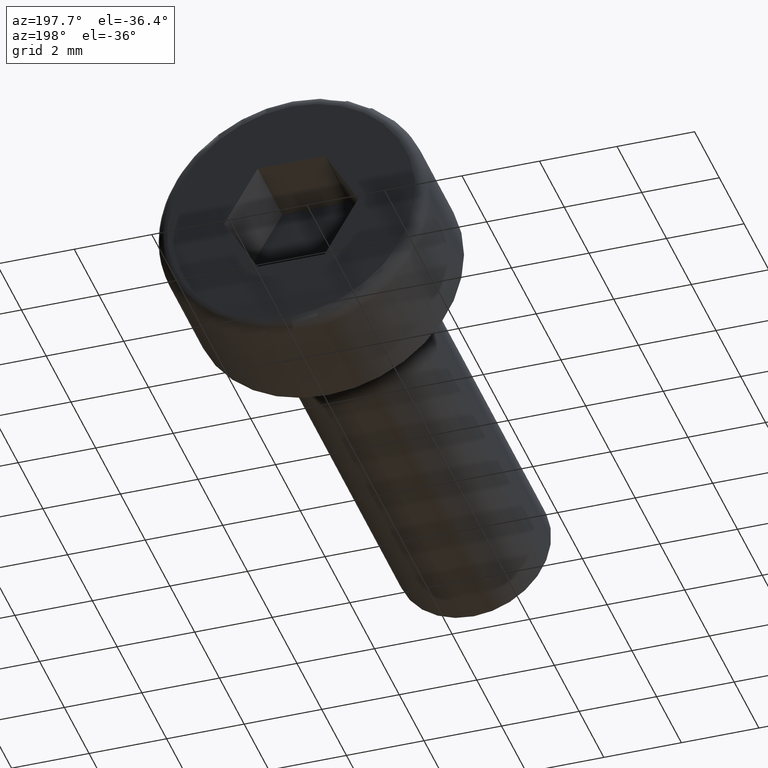
[diagram: clean part render]
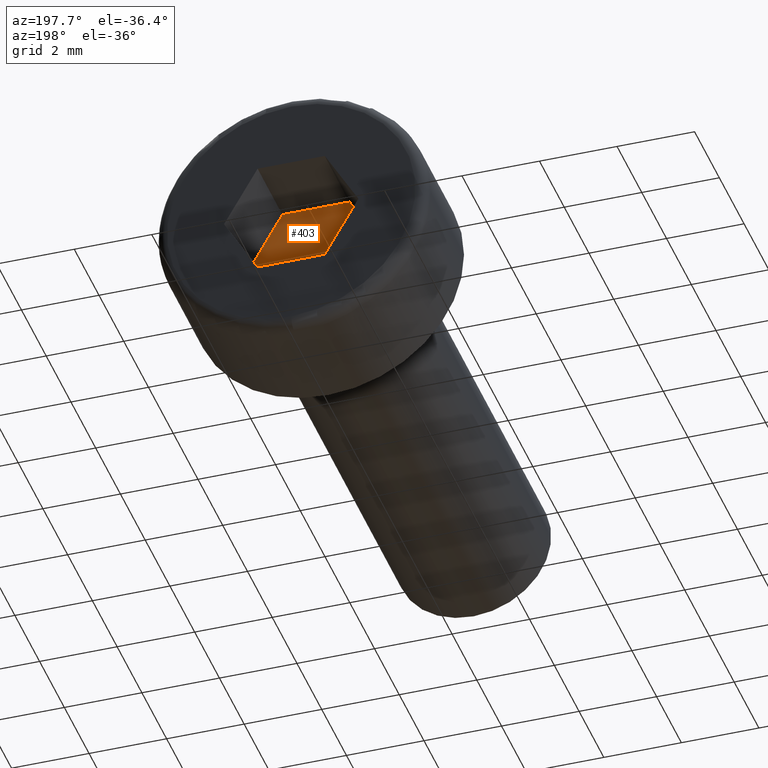
[diagram: same view with one face highlighted and labeled with its STEP entity id]
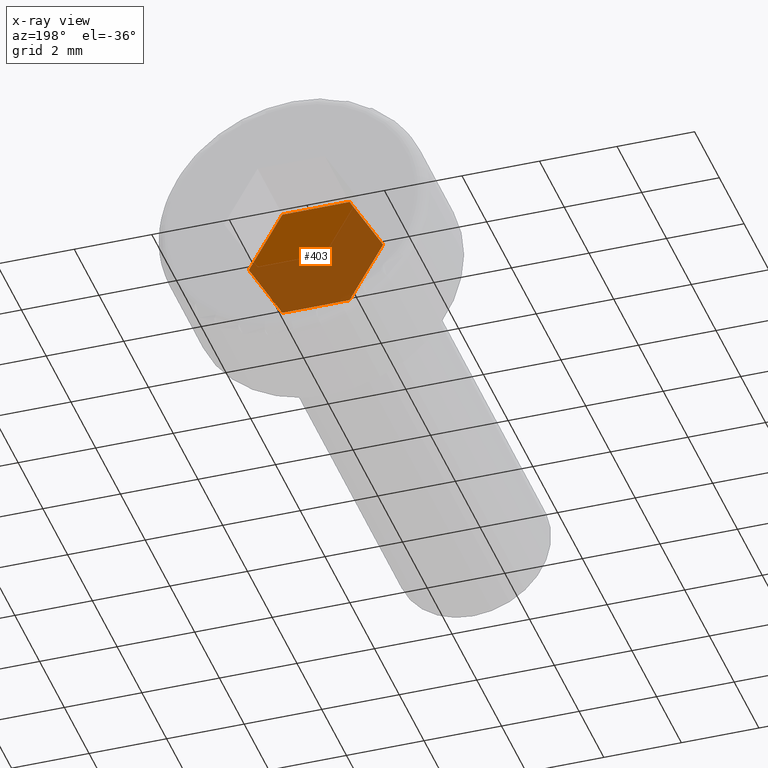
[diagram: x-ray of the same camera — body ghosted, the highlighted face saturated]
A machine part, auxiliary view. The second image highlights one B-rep face of the part: STEP entity #403.
The next image is the same camera in x-ray: the body ghosted, the highlighted face saturated — about 64% of this face is hidden behind the body in this view.
In plain terms, the highlighted planar face has unit normal (0, 1, -0).
Its self-contained STEP definition (entity closure, byte-faithful):
#23 = DIRECTION ( 'NONE',  ( -1.000000000000000000, 0.0000000000000000000, 2.503857664561930400E-016 ) ) ;
#56 = CARTESIAN_POINT ( 'NONE',  ( 0.8660254037844383700, 1.000000000000000000, -1.499999999999999100 ) ) ;
#83 = PLANE ( 'NONE',  #459 ) ;
#93 = CARTESIAN_POINT ( 'NONE',  ( -1.732050807568877900, 1.000000000000000000, -1.397130228418429200E-015 ) ) ;
#96 = CARTESIAN_POINT ( 'NONE',  ( 0.8660254037844382600, 1.000000000000000000, 1.500000000000000700 ) ) ;
#98 = DIRECTION ( 'NONE',  ( 0.0000000000000000000, 1.000000000000000000, -0.0000000000000000000 ) ) ;
#103 = CARTESIAN_POINT ( 'NONE',  ( 1.732050807568877200, 1.000000000000000000, 6.989779385099198900E-016 ) ) ;
#107 = DIRECTION ( 'NONE',  ( 0.5000000000000001100, 0.0000000000000000000, 0.8660254037844384900 ) ) ;
#110 = CARTESIAN_POINT ( 'NONE',  ( -1.732050807568877900, 1.000000000000000000, -1.397130228418429200E-015 ) ) ;
#115 = DIRECTION ( 'NONE',  ( 0.0000000000000000000, 0.0000000000000000000, 1.000000000000000000 ) ) ;
#116 = DIRECTION ( 'NONE',  ( 1.000000000000000000, 0.0000000000000000000, 0.0000000000000000000 ) ) ;
#119 = CARTESIAN_POINT ( 'NONE',  ( -0.8660254037844377100, 1.000000000000000000, 1.500000000000000700 ) ) ;
#122 = DIRECTION ( 'NONE',  ( 0.5000000000000001100, 0.0000000000000000000, -0.8660254037844386000 ) ) ;
#123 = CARTESIAN_POINT ( 'NONE',  ( 0.8660254037844382600, 1.000000000000000000, 1.500000000000000700 ) ) ;
#126 = DIRECTION ( 'NONE',  ( -0.5000000000000001100, 0.0000000000000000000, -0.8660254037844386000 ) ) ;
#127 = CARTESIAN_POINT ( 'NONE',  ( 1.732050807568877200, 1.000000000000000000, 6.989779385099198900E-016 ) ) ;
#132 = CARTESIAN_POINT ( 'NONE',  ( -1.732050807568877900, 1.000000000000000000, -1.325064512341561300E-015 ) ) ;
#152 = CARTESIAN_POINT ( 'NONE',  ( 0.8660254037844383700, 1.000000000000000000, -1.499999999999999100 ) ) ;
#153 = CARTESIAN_POINT ( 'NONE',  ( -0.8660254037844377100, 1.000000000000000000, 1.500000000000000700 ) ) ;
#180 = DIRECTION ( 'NONE',  ( -0.5000000000000001100, 0.0000000000000000000, 0.8660254037844386000 ) ) ;
#191 = CARTESIAN_POINT ( 'NONE',  ( -0.8660254037844404800, 1.000000000000000000, -1.499999999999998700 ) ) ;
#195 = CARTESIAN_POINT ( 'NONE',  ( -0.8660254037844404800, 1.000000000000000000, -1.499999999999998700 ) ) ;
#210 = FACE_OUTER_BOUND ( 'NONE', #536, .T. ) ;
#218 = VERTEX_POINT ( 'NONE', #195 ) ;
#219 = VERTEX_POINT ( 'NONE', #96 ) ;
#220 = VERTEX_POINT ( 'NONE', #56 ) ;
#225 = VECTOR ( 'NONE', #180, 1000.000000000000000 ) ;
#238 = VERTEX_POINT ( 'NONE', #153 ) ;
#239 = VERTEX_POINT ( 'NONE', #103 ) ;
#242 = LINE ( 'NONE', #191, #225 ) ;
#275 = LINE ( 'NONE', #152, #285 ) ;
#285 = VECTOR ( 'NONE', #23, 1000.000000000000000 ) ;
#331 = ORIENTED_EDGE ( 'NONE', *, *, #415, .T. ) ;
#352 = ORIENTED_EDGE ( 'NONE', *, *, #442, .T. ) ;
#359 = ORIENTED_EDGE ( 'NONE', *, *, #446, .T. ) ;
#360 = ORIENTED_EDGE ( 'NONE', *, *, #411, .T. ) ;
#372 = ORIENTED_EDGE ( 'NONE', *, *, #441, .T. ) ;
#380 = ORIENTED_EDGE ( 'NONE', *, *, #444, .T. ) ;
#403 = ADVANCED_FACE ( 'NONE', ( #210 ), #83, .T. ) ;
#411 = EDGE_CURVE ( 'NONE', #218, #563, #242, .T. ) ;
#415 = EDGE_CURVE ( 'NONE', #220, #218, #275, .T. ) ;
#441 = EDGE_CURVE ( 'NONE', #239, #220, #512, .T. ) ;
#442 = EDGE_CURVE ( 'NONE', #219, #239, #501, .T. ) ;
#444 = EDGE_CURVE ( 'NONE', #238, #219, #509, .T. ) ;
#446 = EDGE_CURVE ( 'NONE', #563, #238, #519, .T. ) ;
#459 = AXIS2_PLACEMENT_3D ( 'NONE', #132, #98, #115 ) ;
#501 = LINE ( 'NONE', #123, #513 ) ;
#504 = VECTOR ( 'NONE', #107, 1000.000000000000200 ) ;
#509 = LINE ( 'NONE', #119, #516 ) ;
#512 = LINE ( 'NONE', #127, #515 ) ;
#513 = VECTOR ( 'NONE', #122, 1000.000000000000000 ) ;
#515 = VECTOR ( 'NONE', #126, 1000.000000000000100 ) ;
#516 = VECTOR ( 'NONE', #116, 1000.000000000000000 ) ;
#519 = LINE ( 'NONE', #110, #504 ) ;
#536 = EDGE_LOOP ( 'NONE', ( #360, #359, #380, #352, #372, #331 ) ) ;
#563 = VERTEX_POINT ( 'NONE', #93 ) ;